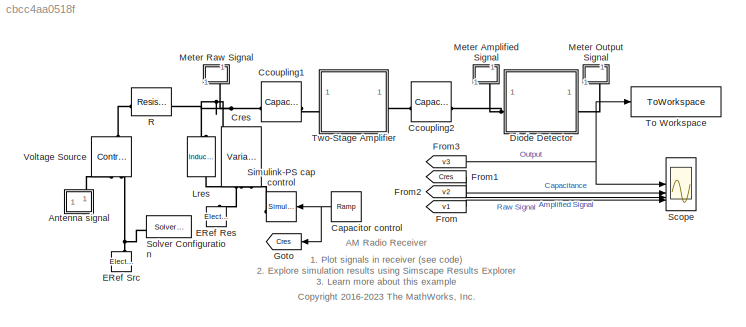
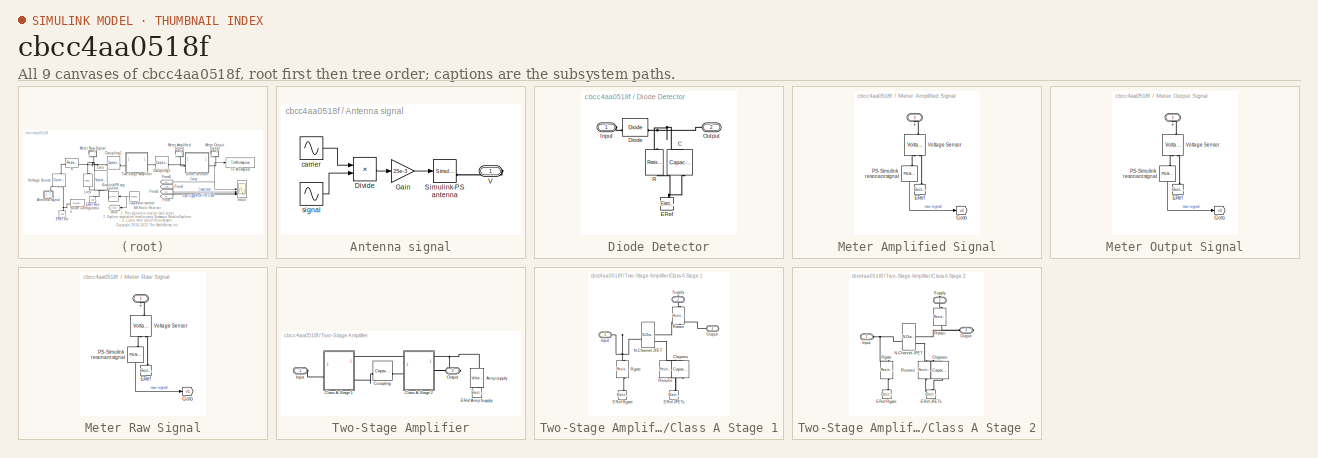
[diagram: thumbnail index - all 9 canvases of the model, root first then tree order]
MODEL slx_cbcc4aa0518f
KIND model
CONFIG AbsTol = auto
CONFIG EnableMultiTasking = off
CONFIG FixedStep = auto
CONFIG MaxStep = auto
CONFIG MinStep = auto
CONFIG RelTol = 1e-3
CONFIG SampleTimeConstraint = Unconstrained
CONFIG SolverName = VariableStepAuto
CONFIG StartTime = 0.0
CONFIG StopTime = 10e-3
BLOCK [SubSystem] Antenna signal
BLOCK [Product] Antenna signal/Divide
  Inputs = **
BLOCK [Gain] Antenna signal/Gain
  Gain = 25e-3
BLOCK [Reference] Antenna signal/Simulink-PS antenna  REF=nesl_utility/Simulink-PS
Converter
  SourceBlock = nesl_utility/Simulink-PS\nConverter
  SourceType = Simulink-PS\nConverter
BLOCK [PMIOPort] Antenna signal/V
  Side = Right
BLOCK [Sin] Antenna signal/carrier
  Frequency = 2*pi*600e3
  SampleTime = 0
BLOCK [Sin] Antenna signal/signal
  Amplitude = 0.5
  Frequency = 2*pi*2e3
  SampleTime = 0
BLOCK [Reference] Capacitor control  REF=simulink/Sources/Ramp
  SourceBlock = simulink/Sources/Ramp
  SourceType = Ramp
BLOCK [Reference] Ccoupling1  REF=ee_lib/Passive/Capacitor
  NameLocation = top
  SourceBlock = ee_lib/Passive/Capacitor
  SourceType = Capacitor
BLOCK [Reference] Ccoupling2  REF=ee_lib/Passive/Capacitor
  NameLocation = top
  SourceBlock = ee_lib/Passive/Capacitor
  SourceType = Capacitor
BLOCK [Reference] Cres  REF=ee_lib/Passive/Variable Capacitor
  NameLocation = right
  SourceBlock = ee_lib/Passive/Variable Capacitor
  SourceType = Variable Capacitor
BLOCK [SubSystem] Diode Detector
  Tag = PublishSubsystem
BLOCK [Reference] Diode Detector/C  REF=ee_lib/Passive/Capacitor
  NameLocation = right
  SourceBlock = ee_lib/Passive/Capacitor
  SourceType = Capacitor
BLOCK [Reference] Diode Detector/Diode  REF=ee_lib/Semiconductors &
Converters/Diode
  SourceBlock = ee_lib/Semiconductors &\nConverters/Diode
  SourceType = Diode
BLOCK [Reference] Diode Detector/ERef  REF=fl_lib/Electrical/Electrical Elements/Electrical Reference
  NameLocation = right
  SourceBlock = fl_lib/Electrical/Electrical Elements/Electrical Reference
  SourceType = Electrical Reference
BLOCK [PMIOPort] Diode Detector/Input
  Side = Left
BLOCK [PMIOPort] Diode Detector/Output
  Port = 2
  Side = Right
BLOCK [Reference] Diode Detector/R  REF=ee_lib/Passive/Resistor
  NameLocation = left
  SourceBlock = ee_lib/Passive/Resistor
  SourceType = Resistor
BLOCK [Reference] ERef Res  REF=fl_lib/Electrical/Electrical Elements/Electrical Reference
  NameLocation = right
  SourceBlock = fl_lib/Electrical/Electrical Elements/Electrical Reference
  SourceType = Electrical Reference
BLOCK [Reference] ERef Src  REF=fl_lib/Electrical/Electrical Elements/Electrical Reference
  NameLocation = left
  SourceBlock = fl_lib/Electrical/Electrical Elements/Electrical Reference
  SourceType = Electrical Reference
BLOCK [From] From
  GotoTag = v1
  TagVisibility = global
BLOCK [From] From1
  GotoTag = Cres
BLOCK [From] From2
  GotoTag = v2
  TagVisibility = global
BLOCK [From] From3
  GotoTag = v3
  TagVisibility = global
BLOCK [Goto] Goto
  GotoTag = Cres
BLOCK [Reference] Lres  REF=ee_lib/Passive/Inductor
  NameLocation = left
  SourceBlock = ee_lib/Passive/Inductor
  SourceType = Inductor
BLOCK [SubSystem] Meter Amplified Signal
  NameLocation = left
BLOCK [PMIOPort] Meter Amplified Signal/+
  NameLocation = right
  Side = Left
BLOCK [Reference] Meter Amplified Signal/ERef  REF=fl_lib/Electrical/Electrical Elements/Electrical Reference
  NameLocation = right
  SourceBlock = fl_lib/Electrical/Electrical Elements/Electrical Reference
  SourceType = Electrical Reference
BLOCK [Goto] Meter Amplified Signal/Goto
  GotoTag = v2
  TagVisibility = global
BLOCK [Reference] Meter Amplified Signal/PS-Simulink resonant signal  REF=nesl_utility/PS-Simulink
Converter
  NameLocation = left
  SourceBlock = nesl_utility/PS-Simulink\nConverter
  SourceType = PS-Simulink\nConverter
BLOCK [Reference] Meter Amplified Signal/Voltage Sensor  REF=fl_lib/Electrical/Electrical Sensors/Voltage Sensor
  NameLocation = left
  SourceBlock = fl_lib/Electrical/Electrical Sensors/Voltage Sensor
  SourceType = Voltage Sensor
BLOCK [SubSystem] Meter Output Signal
  NameLocation = left
BLOCK [PMIOPort] Meter Output Signal/+
  NameLocation = right
  Side = Left
BLOCK [Reference] Meter Output Signal/ERef  REF=fl_lib/Electrical/Electrical Elements/Electrical Reference
  NameLocation = right
  SourceBlock = fl_lib/Electrical/Electrical Elements/Electrical Reference
  SourceType = Electrical Reference
BLOCK [Goto] Meter Output Signal/Goto
  GotoTag = v3
  TagVisibility = global
BLOCK [Reference] Meter Output Signal/PS-Simulink resonant signal  REF=nesl_utility/PS-Simulink
Converter
  NameLocation = left
  SourceBlock = nesl_utility/PS-Simulink\nConverter
  SourceType = PS-Simulink\nConverter
BLOCK [Reference] Meter Output Signal/Voltage Sensor  REF=fl_lib/Electrical/Electrical Sensors/Voltage Sensor
  NameLocation = left
  SourceBlock = fl_lib/Electrical/Electrical Sensors/Voltage Sensor
  SourceType = Voltage Sensor
BLOCK [SubSystem] Meter Raw Signal
  NameLocation = left
BLOCK [PMIOPort] Meter Raw Signal/+
  NameLocation = right
  Side = Left
BLOCK [Reference] Meter Raw Signal/ERef  REF=fl_lib/Electrical/Electrical Elements/Electrical Reference
  NameLocation = right
  SourceBlock = fl_lib/Electrical/Electrical Elements/Electrical Reference
  SourceType = Electrical Reference
BLOCK [Goto] Meter Raw Signal/Goto
  GotoTag = v1
  TagVisibility = global
BLOCK [Reference] Meter Raw Signal/PS-Simulink resonant signal  REF=nesl_utility/PS-Simulink
Converter
  NameLocation = left
  SourceBlock = nesl_utility/PS-Simulink\nConverter
  SourceType = PS-Simulink\nConverter
BLOCK [Reference] Meter Raw Signal/Voltage Sensor  REF=fl_lib/Electrical/Electrical Sensors/Voltage Sensor
  NameLocation = left
  SourceBlock = fl_lib/Electrical/Electrical Sensors/Voltage Sensor
  SourceType = Voltage Sensor
BLOCK [Reference] R  REF=ee_lib/Passive/Resistor
  SourceBlock = ee_lib/Passive/Resistor
  SourceType = Resistor
BLOCK [Scope] Scope
  Floating = off
  NumInputPorts = 4
  ScopeSpecificationString = Simulink.scopes.TimeScopeBlockCfg('CurrentConfiguration', extmgr.ConfigurationSet(extmgr.Configuration('Core','General UI',true),extmgr.Configuration('Core','Source UI',true),extmgr.Configuration('Sources','WiredSimulink',true),extmgr.Configuration('Visuals','Time Domain',true,'SerializedDisplays',{struct('MinYLimReal','-0.00874','MaxYLimReal','0.07567','YLabelReal','','MinYLimMag','0.00000','MaxY...<+2673ch>
BLOCK [Reference] Simulink-PS cap control  REF=nesl_utility/Simulink-PS
Converter
  SourceBlock = nesl_utility/Simulink-PS\nConverter
  SourceType = Simulink-PS\nConverter
BLOCK [Reference] Solver Configuration  REF=nesl_utility/Solver
Configuration
  SourceBlock = nesl_utility/Solver\nConfiguration
  SourceType = Solver\nConfiguration
BLOCK [ToWorkspace] To Workspace
  FixptAsFi = on
  MaxDataPoints = inf
  SampleTime = -1
  SaveFormat = Structure With Time
  VariableName = simout
BLOCK [SubSystem] Two-Stage Amplifier
  Tag = PublishSubsystem
BLOCK [Reference] Two-Stage Amplifier/Amp supply  REF=ee_lib/Sources/Voltage Source
  NameLocation = right
  SourceBlock = ee_lib/Sources/Voltage Source
  SourceType = Voltage Source
BLOCK [Reference] Two-Stage Amplifier/Ccoupling  REF=ee_lib/Passive/Capacitor
  SourceBlock = ee_lib/Passive/Capacitor
  SourceType = Capacitor
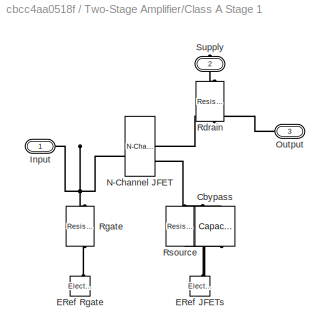
BLOCK [SubSystem] Two-Stage Amplifier/Class A Stage 1
  Tag = PublishSubsystem
BLOCK [Reference] Two-Stage Amplifier/Class A Stage 1/Cbypass  REF=ee_lib/Passive/Capacitor
  NameLocation = right
  SourceBlock = ee_lib/Passive/Capacitor
  SourceType = Capacitor
BLOCK [Reference] Two-Stage Amplifier/Class A Stage 1/ERef JFETs  REF=fl_lib/Electrical/Electrical Elements/Electrical Reference
  NameLocation = right
  SourceBlock = fl_lib/Electrical/Electrical Elements/Electrical Reference
  SourceType = Electrical Reference
BLOCK [Reference] Two-Stage Amplifier/Class A Stage 1/ERef Rgate  REF=fl_lib/Electrical/Electrical Elements/Electrical Reference
  NameLocation = right
  SourceBlock = fl_lib/Electrical/Electrical Elements/Electrical Reference
  SourceType = Electrical Reference
BLOCK [PMIOPort] Two-Stage Amplifier/Class A Stage 1/Input
  Side = Left
BLOCK [Reference] Two-Stage Amplifier/Class A Stage 1/N-Channel JFET  REF=ee_lib/Semiconductors &
Converters/N-Channel JFET
  SourceBlock = ee_lib/Semiconductors &\nConverters/N-Channel JFET
  SourceType = N-Channel JFET
BLOCK [PMIOPort] Two-Stage Amplifier/Class A Stage 1/Output
  Port = 3
  Side = Right
BLOCK [Reference] Two-Stage Amplifier/Class A Stage 1/Rdrain  REF=ee_lib/Passive/Resistor
  NameLocation = left
  SourceBlock = ee_lib/Passive/Resistor
  SourceType = Resistor
BLOCK [Reference] Two-Stage Amplifier/Class A Stage 1/Rgate  REF=ee_lib/Passive/Resistor
  NameLocation = left
  SourceBlock = ee_lib/Passive/Resistor
  SourceType = Resistor
BLOCK [Reference] Two-Stage Amplifier/Class A Stage 1/Rsource  REF=ee_lib/Passive/Resistor
  NameLocation = left
  SourceBlock = ee_lib/Passive/Resistor
  SourceType = Resistor
BLOCK [PMIOPort] Two-Stage Amplifier/Class A Stage 1/Supply
  NameLocation = left
  Port = 2
  Side = Right
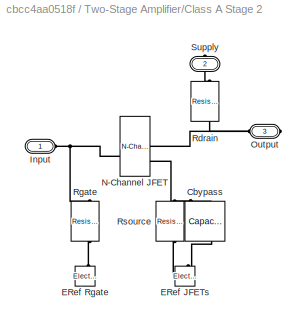
BLOCK [SubSystem] Two-Stage Amplifier/Class A Stage 2
BLOCK [Reference] Two-Stage Amplifier/Class A Stage 2/Cbypass  REF=ee_lib/Passive/Capacitor
  NameLocation = right
  SourceBlock = ee_lib/Passive/Capacitor
  SourceType = Capacitor
BLOCK [Reference] Two-Stage Amplifier/Class A Stage 2/ERef JFETs  REF=fl_lib/Electrical/Electrical Elements/Electrical Reference
  NameLocation = right
  SourceBlock = fl_lib/Electrical/Electrical Elements/Electrical Reference
  SourceType = Electrical Reference
BLOCK [Reference] Two-Stage Amplifier/Class A Stage 2/ERef Rgate  REF=fl_lib/Electrical/Electrical Elements/Electrical Reference
  NameLocation = right
  SourceBlock = fl_lib/Electrical/Electrical Elements/Electrical Reference
  SourceType = Electrical Reference
BLOCK [PMIOPort] Two-Stage Amplifier/Class A Stage 2/Input
  Side = Left
BLOCK [Reference] Two-Stage Amplifier/Class A Stage 2/N-Channel JFET  REF=ee_lib/Semiconductors &
Converters/N-Channel JFET
  SourceBlock = ee_lib/Semiconductors &\nConverters/N-Channel JFET
  SourceType = N-Channel JFET
BLOCK [PMIOPort] Two-Stage Amplifier/Class A Stage 2/Output
  Port = 3
  Side = Right
BLOCK [Reference] Two-Stage Amplifier/Class A Stage 2/Rdrain  REF=ee_lib/Passive/Resistor
  NameLocation = left
  SourceBlock = ee_lib/Passive/Resistor
  SourceType = Resistor
BLOCK [Reference] Two-Stage Amplifier/Class A Stage 2/Rgate  REF=ee_lib/Passive/Resistor
  NameLocation = left
  SourceBlock = ee_lib/Passive/Resistor
  SourceType = Resistor
BLOCK [Reference] Two-Stage Amplifier/Class A Stage 2/Rsource  REF=ee_lib/Passive/Resistor
  NameLocation = left
  SourceBlock = ee_lib/Passive/Resistor
  SourceType = Resistor
BLOCK [PMIOPort] Two-Stage Amplifier/Class A Stage 2/Supply
  NameLocation = left
  Port = 2
  Side = Right
BLOCK [Reference] Two-Stage Amplifier/ERef Amp Supply  REF=fl_lib/Electrical/Electrical Elements/Electrical Reference
  NameLocation = right
  SourceBlock = fl_lib/Electrical/Electrical Elements/Electrical Reference
  SourceType = Electrical Reference
BLOCK [PMIOPort] Two-Stage Amplifier/Input
  Side = Left
BLOCK [PMIOPort] Two-Stage Amplifier/Output
  Port = 2
  Side = Right
BLOCK [Reference] Voltage Source  REF=fl_lib/Electrical/Electrical Sources/Controlled Voltage
Source
  NameLocation = left
  SourceBlock = fl_lib/Electrical/Electrical Sources/Controlled Voltage\nSource
  SourceType = Controlled Voltage\nSource
ANNOTATION (root): 1. Plot signals in receiver (see code) 2. Explore simulation results using Simscape Results Explorer 3. Learn more about this example
ANNOTATION (root): AM Radio Receiver
ANNOTATION (root): <copyright redacted>
LINE Antenna signal/Divide:1 -> Antenna signal/Gain:1
LINE Antenna signal/Gain:1 -> Antenna signal/Simulink-PS antenna:1
LINE Antenna signal/carrier:1 -> Antenna signal/Divide:1
LINE Antenna signal/signal:1 -> Antenna signal/Divide:2
NET Capacitor control:1 -> Goto:1, Simulink-PS cap control:1
LINE From1:1 -> Scope:2
LINE From2:1 -> Scope:3
NET From3:1 -> Scope:1, To Workspace:1
LINE From:1 -> Scope:4
LINE Meter Amplified Signal/PS-Simulink resonant signal:1 -> Meter Amplified Signal/Goto:1
LINE Meter Output Signal/PS-Simulink resonant signal:1 -> Meter Output Signal/Goto:1
LINE Meter Raw Signal/PS-Simulink resonant signal:1 -> Meter Raw Signal/Goto:1
PLINE Antenna signal/Simulink-PS antenna:RConn1 -- Antenna signal/V:RConn1
PLINE Antenna signal:RConn1 -- Voltage Source:RConn1
PNET net1: Ccoupling1:LConn1 -- Cres:RConn1 -- Lres:LConn1 -- Meter Raw Signal:LConn1 -- R:RConn1
PLINE Ccoupling1:RConn1 -- Two-Stage Amplifier:LConn1
PLINE Ccoupling2:LConn1 -- Two-Stage Amplifier:RConn1
PNET net2: Ccoupling2:RConn1 -- Diode Detector:LConn1 -- Meter Amplified Signal:LConn1
PLINE Cres:LConn1 -- Simulink-PS cap control:RConn1
PNET net3: Cres:LConn2 -- ERef Res:LConn1 -- Lres:RConn1
PNET net4: Diode Detector/C:LConn1 -- Diode Detector/Diode:RConn1 -- Diode Detector/Output:RConn1 -- Diode Detector/R:LConn1
PNET net5: Diode Detector/C:RConn1 -- Diode Detector/ERef:LConn1 -- Diode Detector/R:RConn1
PLINE Diode Detector/Diode:LConn1 -- Diode Detector/Input:RConn1
PLINE Diode Detector:RConn1 -- Meter Output Signal:LConn1
PNET net6: ERef Src:LConn1 -- Solver Configuration:RConn1 -- Voltage Source:RConn2
PLINE Meter Amplified Signal/+:RConn1 -- Meter Amplified Signal/Voltage Sensor:LConn1
PLINE Meter Amplified Signal/ERef:LConn1 -- Meter Amplified Signal/Voltage Sensor:RConn2
PLINE Meter Amplified Signal/PS-Simulink resonant signal:LConn1 -- Meter Amplified Signal/Voltage Sensor:RConn1
PLINE Meter Output Signal/+:RConn1 -- Meter Output Signal/Voltage Sensor:LConn1
PLINE Meter Output Signal/ERef:LConn1 -- Meter Output Signal/Voltage Sensor:RConn2
PLINE Meter Output Signal/PS-Simulink resonant signal:LConn1 -- Meter Output Signal/Voltage Sensor:RConn1
PLINE Meter Raw Signal/+:RConn1 -- Meter Raw Signal/Voltage Sensor:LConn1
PLINE Meter Raw Signal/ERef:LConn1 -- Meter Raw Signal/Voltage Sensor:RConn2
PLINE Meter Raw Signal/PS-Simulink resonant signal:LConn1 -- Meter Raw Signal/Voltage Sensor:RConn1
PLINE R:LConn1 -- Voltage Source:LConn1
PNET net7: Two-Stage Amplifier/Amp supply:LConn1 -- Two-Stage Amplifier/Class A Stage 1:RConn1 -- Two-Stage Amplifier/Class A Stage 2:RConn1
PLINE Two-Stage Amplifier/Amp supply:RConn1 -- Two-Stage Amplifier/ERef Amp Supply:LConn1
PLINE Two-Stage Amplifier/Ccoupling:LConn1 -- Two-Stage Amplifier/Class A Stage 1:RConn2
PLINE Two-Stage Amplifier/Ccoupling:RConn1 -- Two-Stage Amplifier/Class A Stage 2:LConn1
PNET net8: Two-Stage Amplifier/Class A Stage 1/Cbypass:LConn1 -- Two-Stage Amplifier/Class A Stage 1/N-Channel JFET:RConn2 -- Two-Stage Amplifier/Class A Stage 1/Rsource:LConn1
PNET net9: Two-Stage Amplifier/Class A Stage 1/Cbypass:RConn1 -- Two-Stage Amplifier/Class A Stage 1/ERef JFETs:LConn1 -- Two-Stage Amplifier/Class A Stage 1/Rsource:RConn1
PLINE Two-Stage Amplifier/Class A Stage 1/ERef Rgate:LConn1 -- Two-Stage Amplifier/Class A Stage 1/Rgate:RConn1
PNET net10: Two-Stage Amplifier/Class A Stage 1/Input:RConn1 -- Two-Stage Amplifier/Class A Stage 1/N-Channel JFET:LConn1 -- Two-Stage Amplifier/Class A Stage 1/Rgate:LConn1
PNET net11: Two-Stage Amplifier/Class A Stage 1/N-Channel JFET:RConn1 -- Two-Stage Amplifier/Class A Stage 1/Output:RConn1 -- Two-Stage Amplifier/Class A Stage 1/Rdrain:RConn1
PLINE Two-Stage Amplifier/Class A Stage 1/Rdrain:LConn1 -- Two-Stage Amplifier/Class A Stage 1/Supply:RConn1
PLINE Two-Stage Amplifier/Class A Stage 1:LConn1 -- Two-Stage Amplifier/Input:RConn1
PNET net12: Two-Stage Amplifier/Class A Stage 2/Cbypass:LConn1 -- Two-Stage Amplifier/Class A Stage 2/N-Channel JFET:RConn2 -- Two-Stage Amplifier/Class A Stage 2/Rsource:LConn1
PNET net13: Two-Stage Amplifier/Class A Stage 2/Cbypass:RConn1 -- Two-Stage Amplifier/Class A Stage 2/ERef JFETs:LConn1 -- Two-Stage Amplifier/Class A Stage 2/Rsource:RConn1
PLINE Two-Stage Amplifier/Class A Stage 2/ERef Rgate:LConn1 -- Two-Stage Amplifier/Class A Stage 2/Rgate:RConn1
PNET net14: Two-Stage Amplifier/Class A Stage 2/Input:RConn1 -- Two-Stage Amplifier/Class A Stage 2/N-Channel JFET:LConn1 -- Two-Stage Amplifier/Class A Stage 2/Rgate:LConn1
PNET net15: Two-Stage Amplifier/Class A Stage 2/N-Channel JFET:RConn1 -- Two-Stage Amplifier/Class A Stage 2/Output:RConn1 -- Two-Stage Amplifier/Class A Stage 2/Rdrain:RConn1
PLINE Two-Stage Amplifier/Class A Stage 2/Rdrain:LConn1 -- Two-Stage Amplifier/Class A Stage 2/Supply:RConn1
PLINE Two-Stage Amplifier/Class A Stage 2:RConn2 -- Two-Stage Amplifier/Output:RConn1
note: NET lines group one-source signal fan-out (src -> all destinations, sorted); 1:1 wires keep LINE; PNET lines group multi-terminal physical nets as a canonical sorted terminal list (undirected conserving connections); 2-terminal nets keep the pairwise PLINE form
